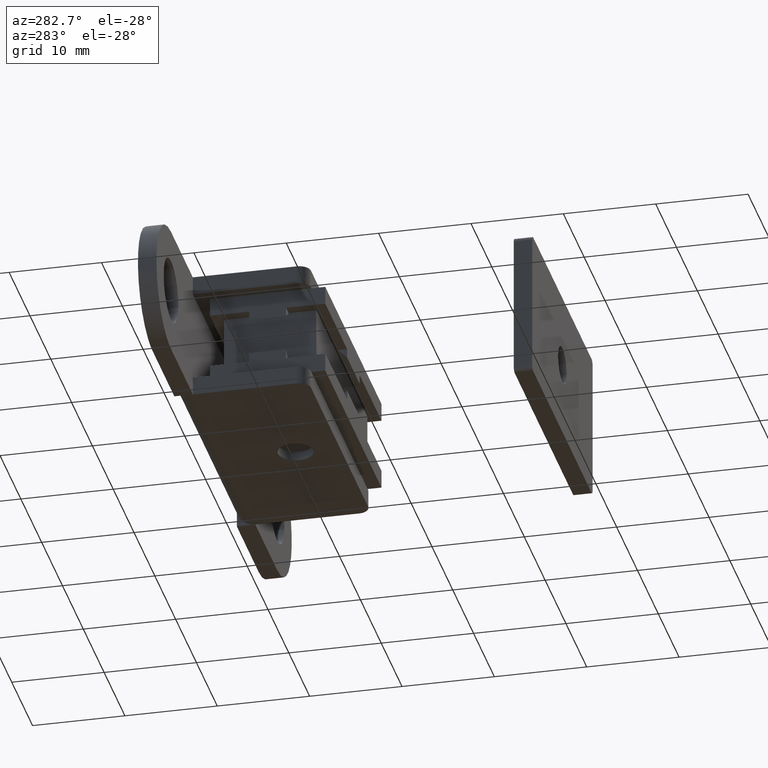
[diagram: clean part render]
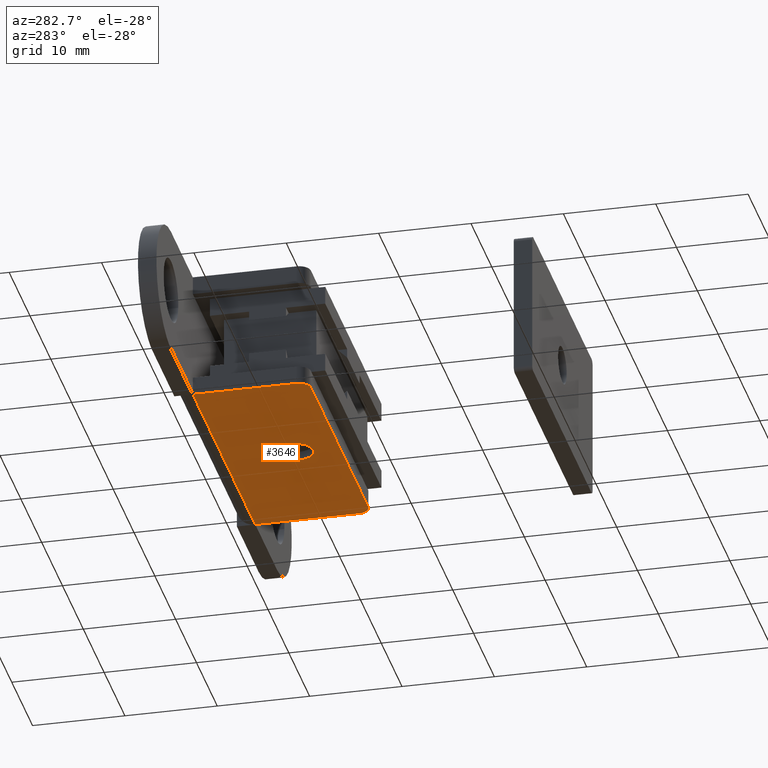
[diagram: same view with one face highlighted and labeled with its STEP entity id]
A machine part, auxiliary view. The second image highlights one B-rep face of the part: STEP entity #3646.
In plain terms, the highlighted face is a freeform B-spline surface patch.
Its self-contained STEP definition (entity closure, byte-faithful):
#1757=CARTESIAN_POINT('',(0.016580417801260,-11.649927653818830,-6.999995999999999));
#1758=VERTEX_POINT('',#1757);
#1764=CARTESIAN_POINT('',(-1.899999999999999,-9.750000000000000,-6.999995999999999));
#1765=VERTEX_POINT('',#1764);
#1766=CARTESIAN_POINT('',(-1.899999999999999,-9.750000000000000,-6.999995999999999));
#1767=CARTESIAN_POINT('',(-1.899999999999998,-11.650000000000000,-6.999995999999999));
#1768=CARTESIAN_POINT('',(1.193991E-015,-11.650000000000000,-6.999995999999999));
#1769=CARTESIAN_POINT('',(0.008290366913698,-11.649999999999999,-6.999995999999999));
#1770=CARTESIAN_POINT('',(0.016580417801260,-11.649927653818830,-6.999995999999999));
#1778=(BOUNDED_CURVE()B_SPLINE_CURVE(2,(#1766,#1767,#1768,#1769,#1770),.UNSPECIFIED.,.F.,.U.)B_SPLINE_CURVE_WITH_KNOTS((3,2,3),(0.500000000000000,0.750000000000000,0.751539894400690),.UNSPECIFIED.)CURVE()GEOMETRIC_REPRESENTATION_ITEM()RATIONAL_B_SPLINE_CURVE((1.0,0.707106781186547,1.0,0.998195901489397,0.996414027948352))REPRESENTATION_ITEM(''));
#1779=EDGE_CURVE('',#1765,#1758,#1778,.T.);
#1781=CARTESIAN_POINT('',(-0.235843204208230,-7.864694193763571,-6.999995999999999));
#1782=VERTEX_POINT('',#1781);
#1783=CARTESIAN_POINT('',(-0.235843204208230,-7.864694193763571,-6.999995999999999));
#1784=CARTESIAN_POINT('',(-1.899999999999998,-8.072872660174573,-6.999995999999999));
#1785=CARTESIAN_POINT('',(-1.899999999999999,-9.750000000000000,-6.999995999999999));
#1793=(BOUNDED_CURVE()B_SPLINE_CURVE(2,(#1783,#1784,#1785),.UNSPECIFIED.,.F.,.U.)B_SPLINE_CURVE_WITH_KNOTS((3,3),(0.271473929016600,0.500000000000000),.UNSPECIFIED.)CURVE()GEOMETRIC_REPRESENTATION_ITEM()RATIONAL_B_SPLINE_CURVE((0.954005430185646,0.732265053947522,1.0))REPRESENTATION_ITEM(''));
#1794=EDGE_CURVE('',#1782,#1765,#1793,.T.);
#1844=CARTESIAN_POINT('',(1.900000000000001,-9.750000000000000,-6.999995999999999));
#1845=VERTEX_POINT('',#1844);
#1846=CARTESIAN_POINT('',(1.900000000000001,-9.750000000000000,-6.999995999999999));
#1847=CARTESIAN_POINT('',(1.900000000000001,-7.849999999999999,-6.999995999999999));
#1848=CARTESIAN_POINT('',(1.193991E-015,-7.850000000000000,-6.999995999999999));
#1849=CARTESIAN_POINT('',(-0.118379362573196,-7.850000000000000,-6.999995999999999));
#1850=CARTESIAN_POINT('',(-0.235843204208230,-7.864694193763571,-6.999995999999999));
#1858=(BOUNDED_CURVE()B_SPLINE_CURVE(2,(#1846,#1847,#1848,#1849,#1850),.UNSPECIFIED.,.F.,.U.)B_SPLINE_CURVE_WITH_KNOTS((3,2,3),(0.0,0.250000000000000,0.271473929016600),.UNSPECIFIED.)CURVE()GEOMETRIC_REPRESENTATION_ITEM()RATIONAL_B_SPLINE_CURVE((1.0,0.707106781186547,1.0,0.974841727239025,0.954005430185646))REPRESENTATION_ITEM(''));
#1859=EDGE_CURVE('',#1845,#1782,#1858,.T.);
#1861=CARTESIAN_POINT('',(0.016580417801260,-11.649927653818837,-6.999995999999999));
#1862=CARTESIAN_POINT('',(1.900000000000000,-11.633491299427865,-6.999996000000001));
#1863=CARTESIAN_POINT('',(1.900000000000001,-9.750000000000000,-6.999995999999999));
#1871=(BOUNDED_CURVE()B_SPLINE_CURVE(2,(#1861,#1862,#1863),.UNSPECIFIED.,.F.,.U.)B_SPLINE_CURVE_WITH_KNOTS((3,3),(0.751539894400691,1.0),.UNSPECIFIED.)CURVE()GEOMETRIC_REPRESENTATION_ITEM()RATIONAL_B_SPLINE_CURVE((0.996414027948349,0.708910879697152,1.0))REPRESENTATION_ITEM(''));
#1872=EDGE_CURVE('',#1758,#1845,#1871,.T.);
#2603=CARTESIAN_POINT('',(-15.0,-2.0,-6.999995999999999));
#2604=VERTEX_POINT('',#2603);
#2625=CARTESIAN_POINT('',(15.0,-2.0,-6.999995999999999));
#2626=VERTEX_POINT('',#2625);
#2640=CARTESIAN_POINT('',(-15.0,-2.0,-6.999995999999999));
#2641=CARTESIAN_POINT('',(15.0,-2.0,-6.999995999999999));
#2642=QUASI_UNIFORM_CURVE('',1,(#2640,#2641),.UNSPECIFIED.,.F.,.U.);
#2643=EDGE_CURVE('',#2604,#2626,#2642,.T.);
#3034=CARTESIAN_POINT('',(-15.0,-13.249999803650240,-6.999995999999999));
#3035=VERTEX_POINT('',#3034);
#3036=CARTESIAN_POINT('',(-15.0,-13.249999803650240,-6.999995999999999));
#3037=CARTESIAN_POINT('',(-15.0,-2.0,-6.999995999999999));
#3038=QUASI_UNIFORM_CURVE('',1,(#3036,#3037),.UNSPECIFIED.,.F.,.U.);
#3039=EDGE_CURVE('',#3035,#2604,#3038,.T.);
#3066=CARTESIAN_POINT('',(-13.750000000000000,-14.499999999999799,-6.999995999999999));
#3067=VERTEX_POINT('',#3066);
#3068=CARTESIAN_POINT('',(-14.999999999999989,-13.249999803650240,-6.999995999999999));
#3069=CARTESIAN_POINT('',(-15.000000081330651,-13.767766814126057,-6.999995999999999));
#3070=CARTESIAN_POINT('',(-14.633883545903240,-14.133883407062930,-6.999995999999999));
#3071=CARTESIAN_POINT('',(-14.267767010475826,-14.499999999999797,-6.999995999999999));
#3072=CARTESIAN_POINT('',(-13.750000000000000,-14.499999999999799,-6.999995999999999));
#3080=(BOUNDED_CURVE()B_SPLINE_CURVE(2,(#3068,#3069,#3070,#3071,#3072),.UNSPECIFIED.,.F.,.U.)B_SPLINE_CURVE_WITH_KNOTS((3,2,3),(0.0,0.500000000000000,1.0),.UNSPECIFIED.)CURVE()GEOMETRIC_REPRESENTATION_ITEM()RATIONAL_B_SPLINE_CURVE((1.0,0.923879517483341,1.0,0.923879517483341,1.0))REPRESENTATION_ITEM(''));
#3081=EDGE_CURVE('',#3035,#3067,#3080,.T.);
#3098=CARTESIAN_POINT('',(13.749999934550139,-14.499999999999799,-6.999995999999999));
#3099=VERTEX_POINT('',#3098);
#3100=CARTESIAN_POINT('',(13.749999934550139,-14.499999999999799,-6.999995999999999));
#3101=CARTESIAN_POINT('',(-13.750000000000000,-14.499999999999799,-6.999995999999999));
#3102=QUASI_UNIFORM_CURVE('',1,(#3100,#3101),.UNSPECIFIED.,.F.,.U.);
#3103=EDGE_CURVE('',#3099,#3067,#3102,.T.);
#3129=CARTESIAN_POINT('',(15.0,-13.249999999999799,-6.999995999999999));
#3130=VERTEX_POINT('',#3129);
#3131=CARTESIAN_POINT('',(13.749999934550139,-14.499999999999799,-6.999995999999999));
#3132=CARTESIAN_POINT('',(14.267766906686330,-14.500000027110024,-6.999995999999999));
#3133=CARTESIAN_POINT('',(14.633883453343159,-14.133883499623010,-6.999995999999999));
#3134=CARTESIAN_POINT('',(15.000000000000002,-13.767766972135997,-6.999995999999999));
#3135=CARTESIAN_POINT('',(15.0,-13.249999999999799,-6.999995999999999));
#3143=(BOUNDED_CURVE()B_SPLINE_CURVE(2,(#3131,#3132,#3133,#3134,#3135),.UNSPECIFIED.,.F.,.U.)B_SPLINE_CURVE_WITH_KNOTS((3,2,3),(0.0,0.500000000000000,1.0),.UNSPECIFIED.)CURVE()GEOMETRIC_REPRESENTATION_ITEM()RATIONAL_B_SPLINE_CURVE((1.0,0.923879527501971,1.0,0.923879527501971,1.0))REPRESENTATION_ITEM(''));
#3144=EDGE_CURVE('',#3099,#3130,#3143,.T.);
#3159=CARTESIAN_POINT('',(15.0,-2.0,-6.999995999999999));
#3160=CARTESIAN_POINT('',(15.0,-13.249999999999799,-6.999995999999999));
#3161=QUASI_UNIFORM_CURVE('',1,(#3159,#3160),.UNSPECIFIED.,.F.,.U.);
#3162=EDGE_CURVE('',#2626,#3130,#3161,.T.);
#3627=CARTESIAN_POINT('',(-16.498499941854181,-15.124374975772360,-6.999995999999999));
#3628=CARTESIAN_POINT('',(16.498500746516889,-15.124374975772360,-6.999995999999999));
#3629=CARTESIAN_POINT('',(-16.498499941854181,-1.375624688951309,-6.999995999999999));
#3630=CARTESIAN_POINT('',(16.498500746516889,-1.375624688951309,-6.999995999999999));
#3631=B_SPLINE_SURFACE_WITH_KNOTS('',1,1,((#3627,#3629),(#3628,#3630)),.UNSPECIFIED.,.F.,.F.,.U.,(2,2),(2,2),(0.0,32.997000688371060),(0.0,13.748750286821060),.UNSPECIFIED.);
#3632=ORIENTED_EDGE('',*,*,#3039,.T.);
#3633=ORIENTED_EDGE('',*,*,#2643,.T.);
#3634=ORIENTED_EDGE('',*,*,#3162,.T.);
#3635=ORIENTED_EDGE('',*,*,#3144,.F.);
#3636=ORIENTED_EDGE('',*,*,#3103,.T.);
#3637=ORIENTED_EDGE('',*,*,#3081,.F.);
#3638=EDGE_LOOP('',(#3632,#3633,#3634,#3635,#3636,#3637));
#3639=FACE_OUTER_BOUND('',#3638,.T.);
#3640=ORIENTED_EDGE('',*,*,#1779,.T.);
#3641=ORIENTED_EDGE('',*,*,#1872,.T.);
#3642=ORIENTED_EDGE('',*,*,#1859,.T.);
#3643=ORIENTED_EDGE('',*,*,#1794,.T.);
#3644=EDGE_LOOP('',(#3640,#3641,#3642,#3643));
#3645=FACE_BOUND('',#3644,.T.);
#3646=ADVANCED_FACE('',(#3639,#3645),#3631,.F.);